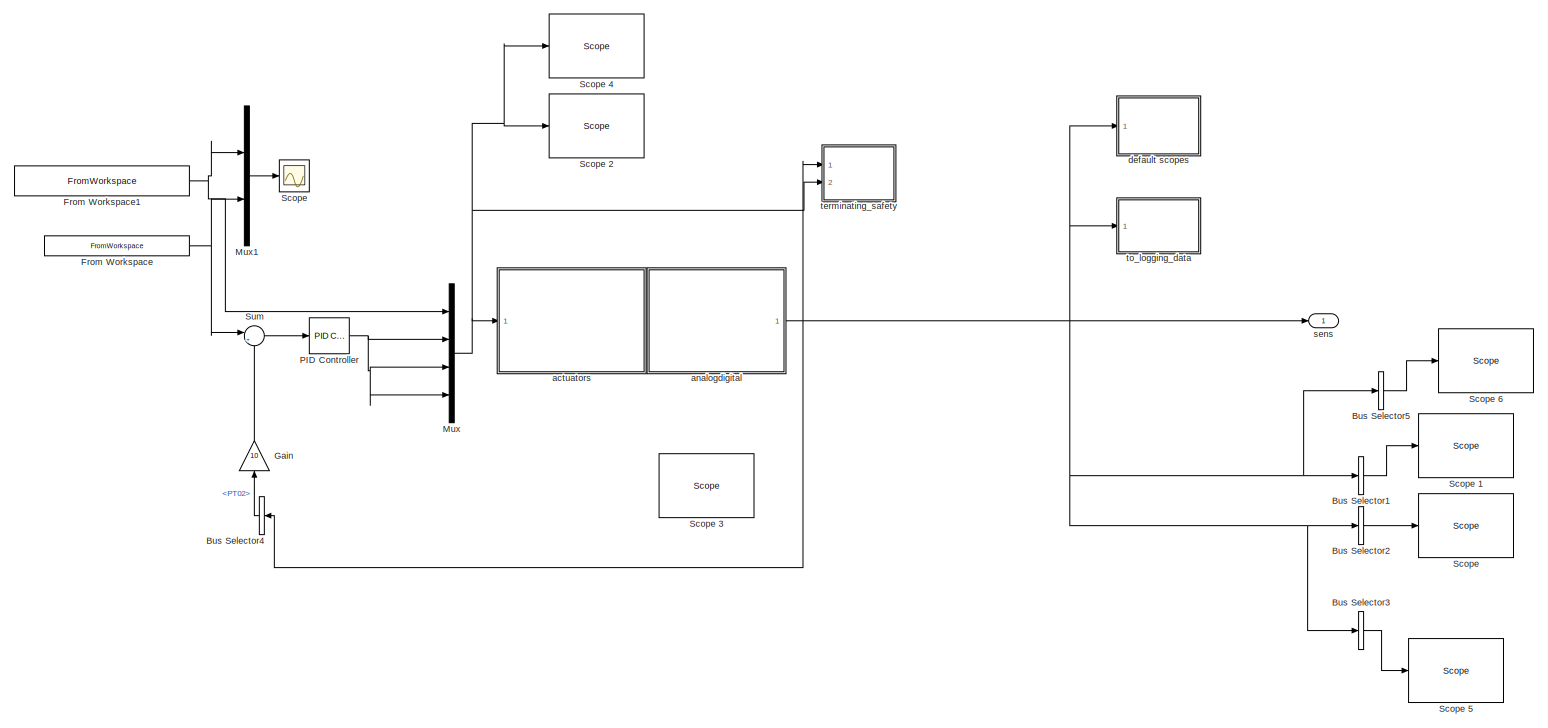
[diagram: root canvas - part 1/1, most of the canvas]
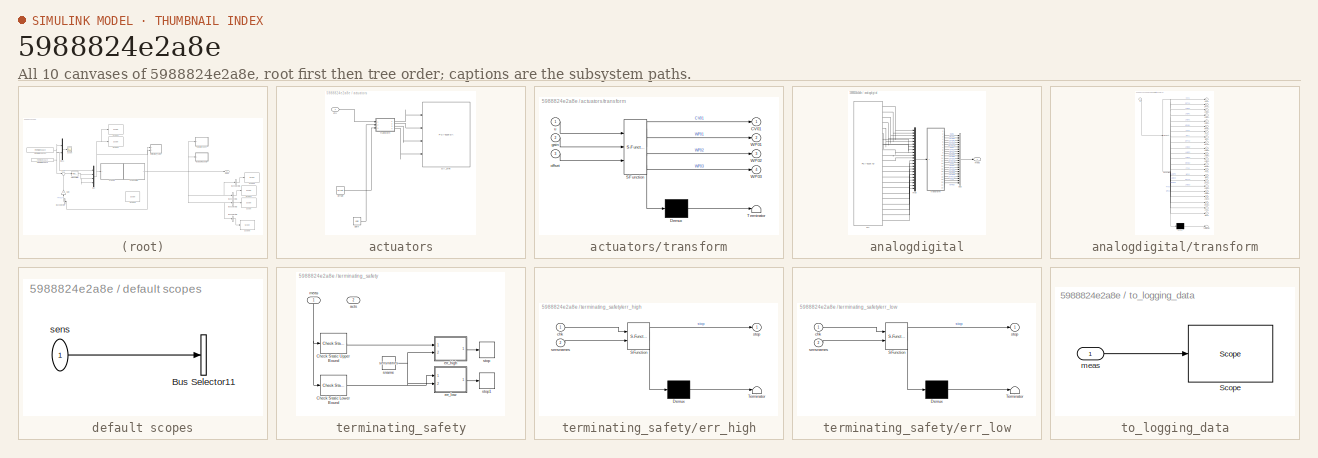
[diagram: thumbnail index - all 10 canvases of the model, root first then tree order]
MODEL slx_5988824e2a8e
KIND model
CONFIG AbsTol = auto
CONFIG FixedStep = auto
CONFIG MaxStep = 0.1
CONFIG MinStep = auto
CONFIG RelTol = 1e-3
CONFIG SampleTimeConstraint = Unconstrained
CONFIG Solver = FixedStepAuto
CONFIG SolverMode = Auto
CONFIG SolverName = FixedStepAuto
CONFIG StartTime = 0.0
CONFIG StopTime = 160
BLOCK [BusSelector] Bus Selector1
  OutputAsBus = on
  OutputSignals = CV01,DPT01,DPT02,DPT03,MFM01,MFM02,MFM03,PT02
  Ports = [1, 1]
BLOCK [BusSelector] Bus Selector2
  OutputAsBus = on
  OutputSignals = LMGV1,LMGV2,LMGV3,LMGC1,LMGC2,LMGC3,LMGP1,LMGP2,LMGP3
  Ports = [1, 1]
BLOCK [BusSelector] Bus Selector3
  OutputAsBus = on
  OutputSignals = WP01,WP02,WP03
  Ports = [1, 1]
BLOCK [BusSelector] Bus Selector4
  OutputSignals = PT02
  Ports = [1, 1]
BLOCK [BusSelector] Bus Selector5
  OutputAsBus = on
  OutputSignals = PT02
  Ports = [1, 1]
BLOCK [FromWorkspace] From Workspace
  Interpolate = off
  OutputAfterFinalValue = Holding final value
  SampleTime = 0
  VariableName = [H_refSampleTime; H_ref].'
  ZeroCross = on
BLOCK [FromWorkspace] From Workspace1
  Interpolate = off
  OutputAfterFinalValue = Holding final value
  SampleTime = 0
  VariableName = [valveSampleTime; valvepos].'
  ZeroCross = on
BLOCK [Gain] Gain
  Gain = 10
  OutDataTypeStr = Inherit: Inherit via internal rule
  ParamDataTypeStr = Inherit: Inherit via internal rule
  SaturateOnIntegerOverflow = off
BLOCK [Mux] Mux
  DisplayOption = bar
  Ports = [4, 1]
BLOCK [Mux] Mux1
  DisplayOption = bar
  Inputs = 2
  Ports = [2, 1]
BLOCK [Reference] PID Controller  REF=simulink/Continuous/PID Controller
  Ports = [1, 1]
  SourceBlock = simulink/Continuous/PID Controller
  SourceType = PID 1dof
BLOCK [Scope] Scope
  Ports = [1]
  ScopeSpecificationString = Simulink.scopes.TimeScopeBlockCfg('CurrentConfiguration', extmgr.ConfigurationSet(extmgr.Configuration('Core','General UI',true),extmgr.Configuration('Core','Source UI',true),extmgr.Configuration('Sources','WiredSimulink',true),extmgr.Configuration('Visuals','Time Domain',true,'SerializedDisplays',{struct('MinYLimReal','-0.4','MaxYLimReal','5.6','YLabelReal','','MinYLimMag','0.00000','MaxYLimMag',...<+1399ch>
BLOCK [Reference] Scope   REF=slrtlib/Displays and
Logging/Scope 
  Ports = [1]
  SourceBlock = slrtlib/Displays and\nLogging/Scope
  SourceType = xpcscopeblock
BLOCK [Reference] Scope 1  REF=slrtlib/Displays and
Logging/Scope 
  Ports = [1]
  SourceBlock = slrtlib/Displays and\nLogging/Scope
  SourceType = xpcscopeblock
BLOCK [Reference] Scope 2  REF=slrtlib/Displays and
Logging/Scope 
  Ports = [1]
  SourceBlock = slrtlib/Displays and\nLogging/Scope
  SourceType = xpcscopeblock
BLOCK [Reference] Scope 3  REF=slrtlib/Displays and
Logging/Scope 
  Ports = [1]
  SourceBlock = slrtlib/Displays and\nLogging/Scope
  SourceType = xpcscopeblock
BLOCK [Reference] Scope 4  REF=slrtlib/Displays and
Logging/Scope 
  Ports = [1]
  SourceBlock = slrtlib/Displays and\nLogging/Scope
  SourceType = xpcscopeblock
BLOCK [Reference] Scope 5  REF=slrtlib/Displays and
Logging/Scope 
  Ports = [1]
  SourceBlock = slrtlib/Displays and\nLogging/Scope
  SourceType = xpcscopeblock
BLOCK [Reference] Scope 6  REF=slrtlib/Displays and
Logging/Scope 
  Ports = [1]
  SourceBlock = slrtlib/Displays and\nLogging/Scope
  SourceType = xpcscopeblock
BLOCK [Sum] Sum
  IconShape = round
  InputSameDT = off
  Inputs = |+-
  OutDataTypeStr = Inherit: Inherit via internal rule
  Ports = [2, 1]
  SaturateOnIntegerOverflow = off
BLOCK [SubSystem] actuators
  Ports = [1]
  RequestExecContextInheritance = off
  Variant = off
BLOCK [Reference] actuators/DA_sink  REF=xpcnilib/D//A/M Series/PCI-6229 DA
  Ports = [4]
  SourceBlock = xpcnilib/D//A/M Series/PCI-6229 DA
  SourceType = danipci6229
BLOCK [Inport] actuators/ctrl
  IconDisplay = Port number
BLOCK [Constant] actuators/gain
  Value = gain
BLOCK [Constant] actuators/offset
  Value = offset
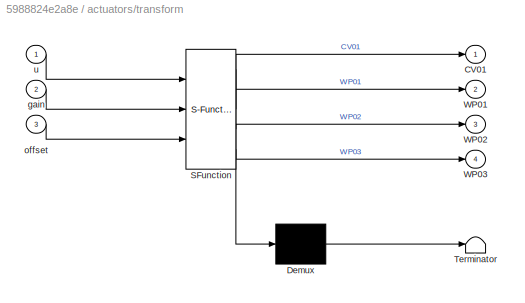
BLOCK [SubSystem] actuators/transform
  ErrorFcn = Stateflow.Translate.translate
  PermitHierarchicalResolution = ExplicitOnly
  Ports = [3, 4]
  RequestExecContextInheritance = off
  SFBlockType = MATLAB Function
  TreatAsAtomicUnit = on
  Variant = off
BLOCK [Demux] actuators/transform/ Demux 
  Outputs = 1
  Ports = [1, 1]
BLOCK [S-Function] actuators/transform/ SFunction 
  EnableBusSupport = on
  FunctionName = sf_sfun
  PortCounts = [3 5]
  Ports = [3, 5]
  SFunctionDeploymentMode = off
  Tag = Stateflow S-Function feedback_plant_with_simple_PID 1
BLOCK [Terminator] actuators/transform/ Terminator 
BLOCK [Outport] actuators/transform/CV01
  IconDisplay = Port number
BLOCK [Outport] actuators/transform/WP01
  IconDisplay = Port number
  Port = 2
BLOCK [Outport] actuators/transform/WP02
  IconDisplay = Port number
  Port = 3
BLOCK [Outport] actuators/transform/WP03
  IconDisplay = Port number
  Port = 4
BLOCK [Inport] actuators/transform/gain
  IconDisplay = Port number
  Port = 2
BLOCK [Inport] actuators/transform/offset
  IconDisplay = Port number
  Port = 3
BLOCK [Inport] actuators/transform/u
  IconDisplay = Port number
BLOCK [SubSystem] analogdigital
  Ports = [0, 1]
  RequestExecContextInheritance = off
  Variant = off
BLOCK [BusCreator] analogdigital/bus
  DisplayOption = bar
  InheritFromInputs = on
  Inputs = 22
  Ports = [22, 1]
BLOCK [Outport] analogdigital/meas
  IconDisplay = Port number
BLOCK [Mux] analogdigital/mux
  DisplayOption = bar
  Inputs = 22
  Ports = [22, 1]
BLOCK [Reference] analogdigital/src  REF=xpcnilib/A//D/M Series/PCI-6229 AD
  Ports = [0, 22]
  SourceBlock = xpcnilib/A//D/M Series/PCI-6229 AD
  SourceType = adnipci6229
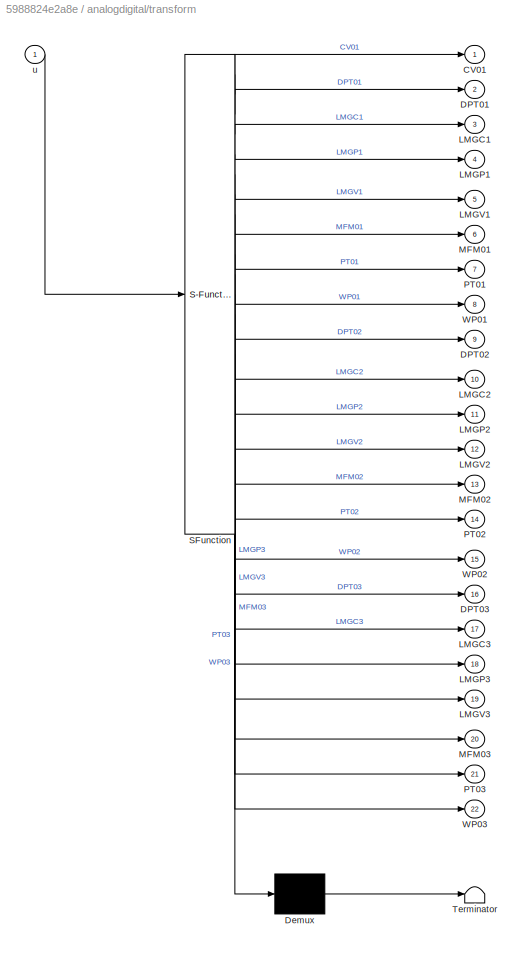
BLOCK [SubSystem] analogdigital/transform
  ErrorFcn = Stateflow.Translate.translate
  PermitHierarchicalResolution = ExplicitOnly
  Ports = [1, 22]
  RequestExecContextInheritance = off
  SFBlockType = MATLAB Function
  TreatAsAtomicUnit = on
  Variant = off
BLOCK [Demux] analogdigital/transform/ Demux 
  Outputs = 1
  Ports = [1, 1]
BLOCK [S-Function] analogdigital/transform/ SFunction 
  EnableBusSupport = on
  FunctionName = sf_sfun
  Parameters = gain,offset
  PortCounts = [1 23]
  Ports = [1, 23]
  SFunctionDeploymentMode = off
  Tag = Stateflow S-Function feedback_plant_with_simple_PID 2
BLOCK [Terminator] analogdigital/transform/ Terminator 
BLOCK [Outport] analogdigital/transform/CV01
  IconDisplay = Port number
BLOCK [Outport] analogdigital/transform/DPT01
  IconDisplay = Port number
  Port = 2
BLOCK [Outport] analogdigital/transform/DPT02
  IconDisplay = Port number
  Port = 9
BLOCK [Outport] analogdigital/transform/DPT03
  IconDisplay = Port number
  Port = 16
BLOCK [Outport] analogdigital/transform/LMGC1
  IconDisplay = Port number
  Port = 3
BLOCK [Outport] analogdigital/transform/LMGC2
  IconDisplay = Port number
  Port = 10
BLOCK [Outport] analogdigital/transform/LMGC3
  IconDisplay = Port number
  Port = 17
BLOCK [Outport] analogdigital/transform/LMGP1
  IconDisplay = Port number
  Port = 4
BLOCK [Outport] analogdigital/transform/LMGP2
  IconDisplay = Port number
  Port = 11
BLOCK [Outport] analogdigital/transform/LMGP3
  IconDisplay = Port number
  Port = 18
BLOCK [Outport] analogdigital/transform/LMGV1
  IconDisplay = Port number
  Port = 5
BLOCK [Outport] analogdigital/transform/LMGV2
  IconDisplay = Port number
  Port = 12
BLOCK [Outport] analogdigital/transform/LMGV3
  IconDisplay = Port number
  Port = 19
BLOCK [Outport] analogdigital/transform/MFM01
  IconDisplay = Port number
  Port = 6
BLOCK [Outport] analogdigital/transform/MFM02
  IconDisplay = Port number
  Port = 13
BLOCK [Outport] analogdigital/transform/MFM03
  IconDisplay = Port number
  Port = 20
BLOCK [Outport] analogdigital/transform/PT01
  IconDisplay = Port number
  Port = 7
BLOCK [Outport] analogdigital/transform/PT02
  IconDisplay = Port number
  Port = 14
BLOCK [Outport] analogdigital/transform/PT03
  IconDisplay = Port number
  Port = 21
BLOCK [Outport] analogdigital/transform/WP01
  IconDisplay = Port number
  Port = 8
BLOCK [Outport] analogdigital/transform/WP02
  IconDisplay = Port number
  Port = 15
BLOCK [Outport] analogdigital/transform/WP03
  IconDisplay = Port number
  Port = 22
BLOCK [Inport] analogdigital/transform/u
  IconDisplay = Port number
BLOCK [SubSystem] default scopes
  Ports = [1]
  RequestExecContextInheritance = off
  Variant = off
BLOCK [BusSelector] default scopes/Bus Selector11
  OutputAsBus = on
  OutputSignals = CV01,DPT01,LMGC1
  Ports = [1, 1]
BLOCK [Inport] default scopes/sens
  IconDisplay = Port number
BLOCK [Outport] sens
  IconDisplay = Port number
BLOCK [SubSystem] terminating_safety
  Ports = [2]
  RequestExecContextInheritance = off
  Variant = off
BLOCK [Reference] terminating_safety/Check Static Lower Bound  REF=simulink/Model
Verification/Check Static 
Lower Bound
  Description = [sensors.MinOp]-([sensors.MaxOp]-[sensors.MinOp])*0.05 <= u
  Ports = [1, 1]
  SourceBlock = simulink/Model\nVerification/Check Static \nLower Bound
  SourceType = Checks_SMin
BLOCK [Reference] terminating_safety/Check Static Upper Bound  REF=simulink/Model
Verification/Check Static 
Upper Bound
  Description = u <= [sensors.MaxOp]+([sensors.MaxOp]-[sensors.MinOp])*0.05
  Ports = [1, 1]
  SourceBlock = simulink/Model\nVerification/Check Static \nUpper Bound
  SourceType = Checks_SMax
BLOCK [Inport] terminating_safety/acts
  IconDisplay = Port number
  Port = 2
BLOCK [SubSystem] terminating_safety/err_high
  ErrorFcn = Stateflow.Translate.translate
  PermitHierarchicalResolution = ExplicitOnly
  Ports = [2, 1]
  RequestExecContextInheritance = off
  SFBlockType = MATLAB Function
  TreatAsAtomicUnit = on
  Variant = off
BLOCK [Demux] terminating_safety/err_high/ Demux 
  Outputs = 1
  Ports = [1, 1]
BLOCK [S-Function] terminating_safety/err_high/ SFunction 
  EnableBusSupport = on
  FunctionName = sf_sfun
  PortCounts = [2 2]
  Ports = [2, 2]
  SFunctionDeploymentMode = off
  Tag = Stateflow S-Function feedback_plant_with_simple_PID 18
BLOCK [Terminator] terminating_safety/err_high/ Terminator 
BLOCK [Inport] terminating_safety/err_high/chk
  IconDisplay = Port number
BLOCK [Inport] terminating_safety/err_high/sensnames
  IconDisplay = Port number
  Port = 2
BLOCK [Outport] terminating_safety/err_high/stop
  IconDisplay = Port number
BLOCK [SubSystem] terminating_safety/err_low
  ErrorFcn = Stateflow.Translate.translate
  PermitHierarchicalResolution = ExplicitOnly
  Ports = [2, 1]
  RequestExecContextInheritance = off
  SFBlockType = MATLAB Function
  TreatAsAtomicUnit = on
  Variant = off
BLOCK [Demux] terminating_safety/err_low/ Demux 
  Outputs = 1
  Ports = [1, 1]
BLOCK [S-Function] terminating_safety/err_low/ SFunction 
  EnableBusSupport = on
  FunctionName = sf_sfun
  PortCounts = [2 2]
  Ports = [2, 2]
  SFunctionDeploymentMode = off
  Tag = Stateflow S-Function feedback_plant_with_simple_PID 19
BLOCK [Terminator] terminating_safety/err_low/ Terminator 
BLOCK [Inport] terminating_safety/err_low/chk
  IconDisplay = Port number
BLOCK [Inport] terminating_safety/err_low/sensnames
  IconDisplay = Port number
  Port = 2
BLOCK [Outport] terminating_safety/err_low/stop
  IconDisplay = Port number
BLOCK [Inport] terminating_safety/meas
  IconDisplay = Port number
BLOCK [Constant] terminating_safety/sname
  Value = sensnames
BLOCK [Stop] terminating_safety/stop
BLOCK [Stop] terminating_safety/stop1
BLOCK [SubSystem] to_logging_data
  Ports = [1]
  RequestExecContextInheritance = off
  Variant = off
BLOCK [Reference] to_logging_data/Scope   REF=slrtlib/Displays and
Logging/Scope 
  Ports = [1]
  SourceBlock = slrtlib/Displays and\nLogging/Scope
  SourceType = xpcscopeblock
BLOCK [Inport] to_logging_data/meas
  IconDisplay = Port number
LINE Bus Selector1:1 -> Scope 1:1
LINE Bus Selector2:1 -> Scope :1
LINE Bus Selector3:1 -> Scope 5:1
LINE Bus Selector4:1 -> Gain:1
LINE Bus Selector5:1 -> Scope 6:1
NET From Workspace1:1 -> Mux1:1, Mux:1
NET From Workspace:1 -> Mux1:2, Sum:1
LINE Gain:1 -> Sum:2
LINE Mux1:1 -> Scope:1
NET Mux:1 -> Scope 2:1, Scope 4:1, actuators:1, terminating_safety:2
NET PID Controller:1 -> Mux:2, Mux:3, Mux:4
LINE Sum:1 -> PID Controller:1
LINE actuators/ctrl:1 -> actuators/transform:1
LINE actuators/gain:1 -> actuators/transform:2
LINE actuators/offset:1 -> actuators/transform:3
LINE actuators/transform:1 -> actuators/DA_sink:1
LINE actuators/transform:2 -> actuators/DA_sink:2
LINE actuators/transform:3 -> actuators/DA_sink:3
LINE actuators/transform:4 -> actuators/DA_sink:4
LINE analogdigital/bus:1 -> analogdigital/meas:1
LINE analogdigital/mux:1 -> analogdigital/transform:1
LINE analogdigital/src:1 -> analogdigital/mux:1
LINE analogdigital/src:10 -> analogdigital/mux:10
LINE analogdigital/src:11 -> analogdigital/mux:11
LINE analogdigital/src:12 -> analogdigital/mux:12
LINE analogdigital/src:13 -> analogdigital/mux:13
LINE analogdigital/src:14 -> analogdigital/mux:14
LINE analogdigital/src:15 -> analogdigital/mux:15
LINE analogdigital/src:16 -> analogdigital/mux:16
LINE analogdigital/src:17 -> analogdigital/mux:17
LINE analogdigital/src:18 -> analogdigital/mux:18
LINE analogdigital/src:19 -> analogdigital/mux:19
LINE analogdigital/src:2 -> analogdigital/mux:2
LINE analogdigital/src:20 -> analogdigital/mux:20
LINE analogdigital/src:21 -> analogdigital/mux:21
LINE analogdigital/src:22 -> analogdigital/mux:22
LINE analogdigital/src:3 -> analogdigital/mux:3
LINE analogdigital/src:4 -> analogdigital/mux:4
LINE analogdigital/src:5 -> analogdigital/mux:5
LINE analogdigital/src:6 -> analogdigital/mux:6
LINE analogdigital/src:7 -> analogdigital/mux:7
LINE analogdigital/src:8 -> analogdigital/mux:8
LINE analogdigital/src:9 -> analogdigital/mux:9
LINE analogdigital/transform:1 -> analogdigital/bus:1
LINE analogdigital/transform:10 -> analogdigital/bus:10
LINE analogdigital/transform:11 -> analogdigital/bus:11
LINE analogdigital/transform:12 -> analogdigital/bus:12
LINE analogdigital/transform:13 -> analogdigital/bus:13
LINE analogdigital/transform:14 -> analogdigital/bus:14
LINE analogdigital/transform:15 -> analogdigital/bus:15
LINE analogdigital/transform:16 -> analogdigital/bus:16
LINE analogdigital/transform:17 -> analogdigital/bus:17
LINE analogdigital/transform:18 -> analogdigital/bus:18
LINE analogdigital/transform:19 -> analogdigital/bus:19
LINE analogdigital/transform:2 -> analogdigital/bus:2
LINE analogdigital/transform:20 -> analogdigital/bus:20
LINE analogdigital/transform:21 -> analogdigital/bus:21
LINE analogdigital/transform:22 -> analogdigital/bus:22
LINE analogdigital/transform:3 -> analogdigital/bus:3
LINE analogdigital/transform:4 -> analogdigital/bus:4
LINE analogdigital/transform:5 -> analogdigital/bus:5
LINE analogdigital/transform:6 -> analogdigital/bus:6
LINE analogdigital/transform:7 -> analogdigital/bus:7
LINE analogdigital/transform:8 -> analogdigital/bus:8
LINE analogdigital/transform:9 -> analogdigital/bus:9
NET analogdigital:1 -> Bus Selector1:1, Bus Selector2:1, Bus Selector3:1, Bus Selector4:1, Bus Selector5:1, default scopes:1, sens:1, terminating_safety:1, to_logging_data:1
LINE default scopes/sens:1 -> default scopes/Bus Selector11:1
LINE terminating_safety/Check Static Lower Bound:1 -> terminating_safety/err_low:1
LINE terminating_safety/Check Static Upper Bound:1 -> terminating_safety/err_high:1
LINE terminating_safety/err_high:1 -> terminating_safety/stop:1
LINE terminating_safety/err_low:1 -> terminating_safety/stop1:1
NET terminating_safety/meas:1 -> terminating_safety/Check Static Lower Bound:1, terminating_safety/Check Static Upper Bound:1
NET terminating_safety/sname:1 -> terminating_safety/err_high:2, terminating_safety/err_low:2
LINE to_logging_data/meas:1 -> to_logging_data/Scope :1
note: NET lines group one-source signal fan-out (src -> all destinations, sorted); 1:1 wires keep LINE
CHART actuators/transform states=1 transitions=1
  STATE_LABEL 'eML_blk_kernel()'
  STATE_LABEL 'SCRIPT:\nfunction [CV01,WP01,WP02,WP03]  = fcn(u,gain,offset)\n   y = u.*gain-offset;\nCV01 = y(1);\nWP01 = y(2);\nWP02 = y(3);\nWP03 = y(4);'
CHART analogdigital/transform states=1 transitions=1
  STATE_LABEL 'eML_blk_kernel()'
  STATE_LABEL 'SCRIPT:\nfunction [CV01,DPT01,LMGC1,LMGP1,LMGV1,MFM01,PT01,WP01,DPT02,LMGC2,LMGP2,LMGV2,MFM02,PT02,WP02,DPT03,LMGC3,LMGP3,LMGV3,MFM03,PT03,WP03]  = fcn(u,gain,offset)\n   y = u(:).*gain(:)-offset(:);\nCV01 = y(1);\nDPT01 = y(2);\nLMGC1 = y(3);\nLMGP1 = y(4);\nLMGV1 = y(5);\nMFM01 = y(6);\nPT01 = y(7);\nWP01 = y(8);\nDPT02 = y(9);\nLMGC2 = y(10);\nLMGP2 = y(11);\nLMGV2 = y(12);\nMFM02 = y(13);\nPT02 = y(14);\nWP02 ...<+111ch>'
CHART terminating_safety/err_high states=1 transitions=1
  STATE_LABEL 'eML_blk_kernel()'
  STATE_LABEL "SCRIPT:\nfunction stop  = fcn(chk, sensnames)\n%#codegen\n%test = char(sensnames.');\ntest = sensnames.';\nk = find(test == 47);\nk = [0 k];\nk = [k numel(test)];\nstop = 0;\nfor i = 1:numel(chk)\n    if chk(i) == 0\n        str = char(test(k(i)+1:k(i+1)-1));\n        Error = [str ': VALUE TOO HIGH ']\n        coder.ceval('printf', ['%s' 10 0], Error);\n        stop = stop+1;\n    end\nend\n\n\n\n"
CHART terminating_safety/err_low states=1 transitions=1
  STATE_LABEL 'eML_blk_kernel()'
  STATE_LABEL "SCRIPT:\nfunction stop  = fcn(chk, sensnames)\n%#codegen\ntest = char(sensnames.');\nk = strfind(test, '/');\nk = [0 k];\nk = [k numel(sensnames)];\nstop = 0;\nfor i = 1:numel(chk)\n    if chk(i) == 0\n        str = char(test(k(i)+1:k(i+1)-1));\n        Error = [str ': VALUE TOO LOW']\n        coder.ceval('printf', ['%s' 10 0], Error);\n        stop = stop+1;\n    end\nend\n"
